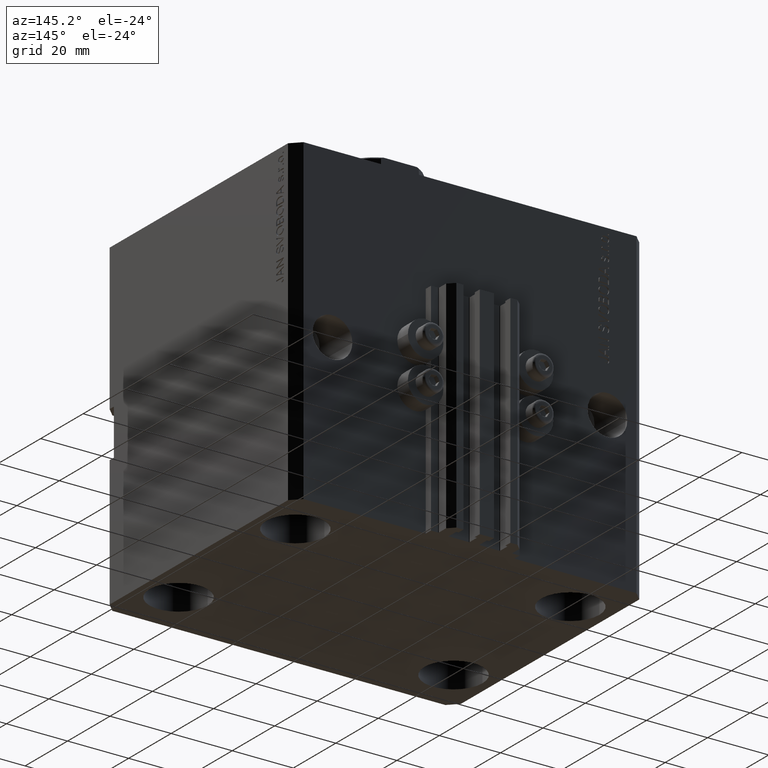
[diagram: clean part render]
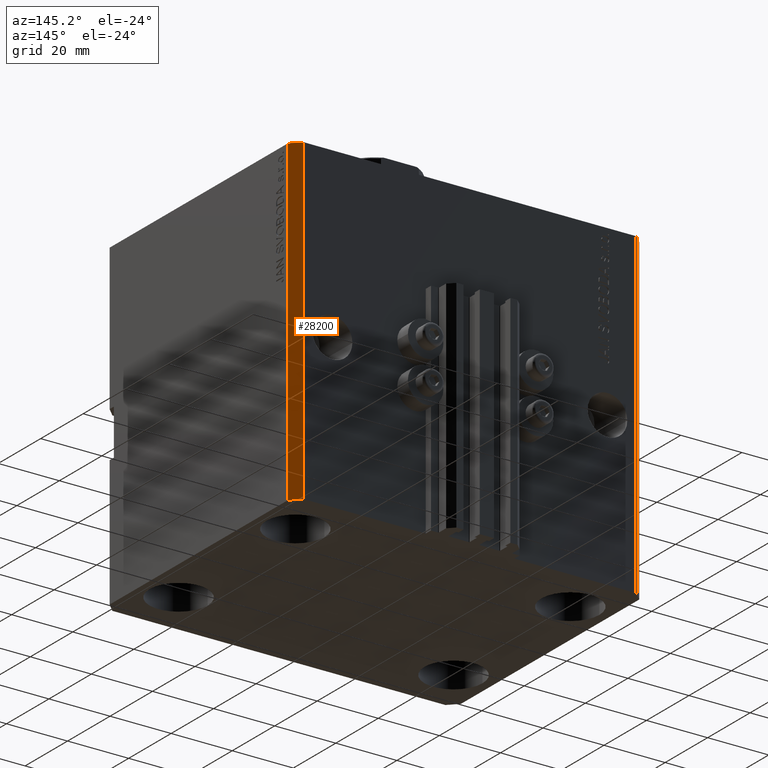
[diagram: same view with one face highlighted and labeled with its STEP entity id]
A machine part, auxiliary view. The second image highlights one B-rep face of the part: STEP entity #28200.
In plain terms, the highlighted planar face has unit normal (0.7071, 0.7071, 0).
Its self-contained STEP definition (entity closure, byte-faithful):
#1167 = CARTESIAN_POINT ( 'NONE',  ( 54.50000000000058975, 45.00000000000002842, -105.0000000000000000 ) ) ;
#3198 = LINE ( 'NONE', #11047, #18093 ) ;
#6258 = LINE ( 'NONE', #25709, #29753 ) ;
#7459 = EDGE_CURVE ( 'NONE', #34204, #18611, #29434, .T. ) ;
#9334 = DIRECTION ( 'NONE',  ( 0.000000000000000000, 0.000000000000000000, 1.000000000000000000 ) ) ;
#9628 = VERTEX_POINT ( 'NONE', #12189 ) ;
#9788 = CARTESIAN_POINT ( 'NONE',  ( 57.50000000000055422, 41.99999999999997868, -105.0000000000000000 ) ) ;
#11047 = CARTESIAN_POINT ( 'NONE',  ( 57.50000000000055422, 41.99999999999997868, 0.000000000000000000 ) ) ;
#12189 = CARTESIAN_POINT ( 'NONE',  ( 54.50000000000058975, 45.00000000000002842, 0.000000000000000000 ) ) ;
#13124 = VERTEX_POINT ( 'NONE', #1167 ) ;
#14271 = PLANE ( 'NONE',  #24858 ) ;
#18093 = VECTOR ( 'NONE', #40843, 999.9999999999998863 ) ;
#18611 = VERTEX_POINT ( 'NONE', #26147 ) ;
#23320 = VECTOR ( 'NONE', #24812, 999.9999999999998863 ) ;
#24812 = DIRECTION ( 'NONE',  ( -0.7071067811865376918, 0.7071067811865574537, 0.000000000000000000 ) ) ;
#24858 = AXIS2_PLACEMENT_3D ( 'NONE', #28374, #37150, #29288 ) ;
#25709 = CARTESIAN_POINT ( 'NONE',  ( 54.50000000000058975, 45.00000000000002842, -105.0000000000000000 ) ) ;
#26147 = CARTESIAN_POINT ( 'NONE',  ( 57.50000000000055422, 41.99999999999997868, 0.000000000000000000 ) ) ;
#27518 = CARTESIAN_POINT ( 'NONE',  ( 57.50000000000055422, 41.99999999999997868, -105.0000000000000000 ) ) ;
#27618 = EDGE_CURVE ( 'NONE', #34204, #13124, #29701, .T. ) ;
#28200 = ADVANCED_FACE ( 'NONE', ( #39446 ), #14271, .T. ) ;
#28374 = CARTESIAN_POINT ( 'NONE',  ( 57.50000000000055422, 41.99999999999997868, -105.0000000000000000 ) ) ;
#28452 = VECTOR ( 'NONE', #9334, 1000.000000000000000 ) ;
#29288 = DIRECTION ( 'NONE',  ( -0.7071067811865376918, 0.7071067811865574537, 0.000000000000000000 ) ) ;
#29434 = LINE ( 'NONE', #44441, #28452 ) ;
#29701 = LINE ( 'NONE', #9788, #23320 ) ;
#29753 = VECTOR ( 'NONE', #40710, 1000.000000000000000 ) ;
#29757 = ORIENTED_EDGE ( 'NONE', *, *, #27618, .T. ) ;
#30751 = EDGE_LOOP ( 'NONE', ( #36735, #32074, #29757, #42137 ) ) ;
#32074 = ORIENTED_EDGE ( 'NONE', *, *, #7459, .F. ) ;
#34204 = VERTEX_POINT ( 'NONE', #27518 ) ;
#36735 = ORIENTED_EDGE ( 'NONE', *, *, #41406, .F. ) ;
#37150 = DIRECTION ( 'NONE',  ( 0.7071067811865574537, 0.7071067811865376918, -0.000000000000000000 ) ) ;
#37347 = EDGE_CURVE ( 'NONE', #13124, #9628, #6258, .T. ) ;
#39446 = FACE_OUTER_BOUND ( 'NONE', #30751, .T. ) ;
#40710 = DIRECTION ( 'NONE',  ( 0.000000000000000000, 0.000000000000000000, 1.000000000000000000 ) ) ;
#40843 = DIRECTION ( 'NONE',  ( -0.7071067811865376918, 0.7071067811865574537, 0.000000000000000000 ) ) ;
#41406 = EDGE_CURVE ( 'NONE', #18611, #9628, #3198, .T. ) ;
#42137 = ORIENTED_EDGE ( 'NONE', *, *, #37347, .T. ) ;
#44441 = CARTESIAN_POINT ( 'NONE',  ( 57.50000000000055422, 41.99999999999997868, -105.0000000000000000 ) ) ;